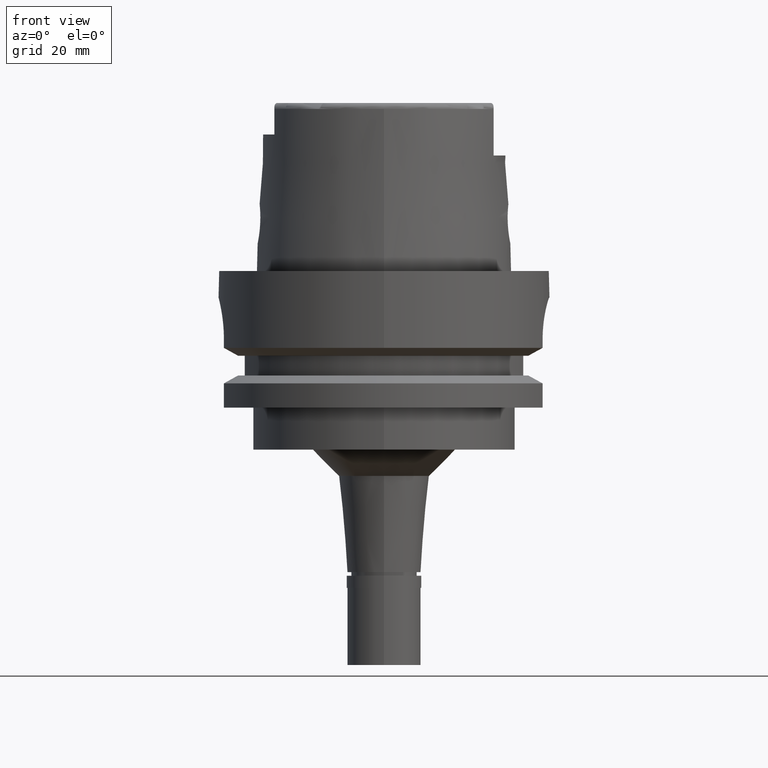
[diagram: clean part render]
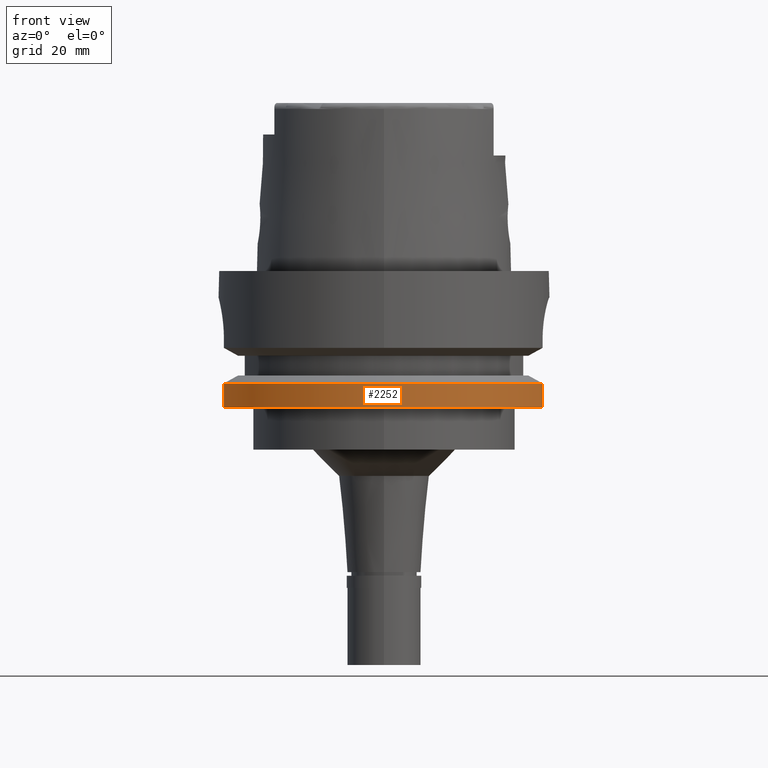
[diagram: same view with one face highlighted and labeled with its STEP entity id]
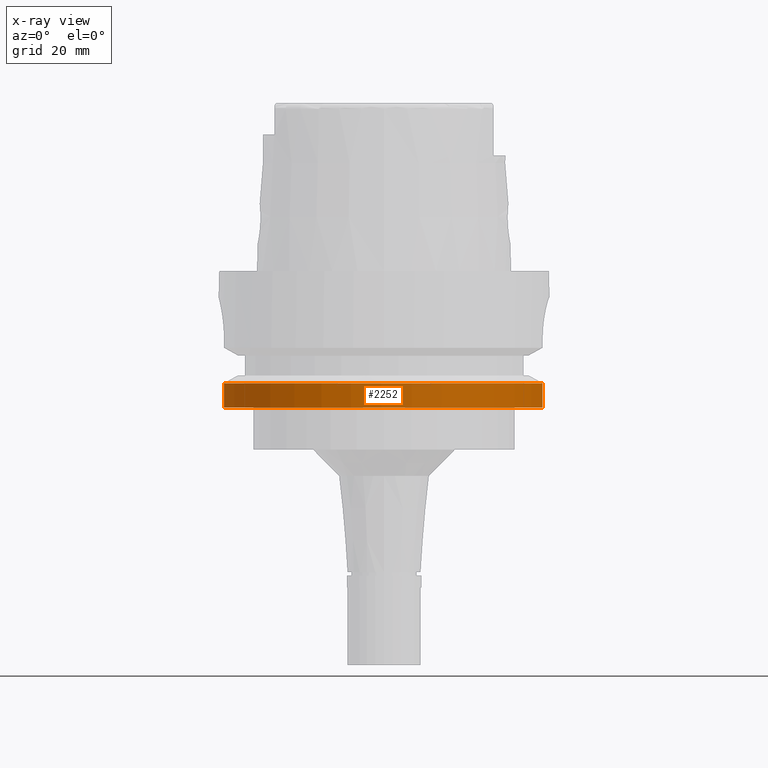
[diagram: x-ray of the same camera — body ghosted, the highlighted face saturated]
A machine part, front view. The second image highlights one B-rep face of the part: STEP entity #2252.
The next image is the same camera in x-ray: the body ghosted, the highlighted face saturated — about 0% of this face is hidden behind the body in this view.
In plain terms, the highlighted cylindrical surface (partial cylindrical patch) has radius 31.5 mm, axis along (0, 0, -1).
Its self-contained STEP definition (entity closure, byte-faithful):
#515 = VERTEX_POINT ( 'NONE', #1064 ) ;
#566 = DIRECTION ( 'NONE',  ( 4.481168997119943550E-08, 1.503032495320979407E-07, -0.9999999999999876765 ) ) ;
#749 = ORIENTED_EDGE ( 'NONE', *, *, #3922, .F. ) ;
#802 = ORIENTED_EDGE ( 'NONE', *, *, #5507, .T. ) ;
#858 = CARTESIAN_POINT ( 'NONE',  ( 0.0000000000000000000, 0.0000000000000000000, -26.00000000000000000 ) ) ;
#906 = AXIS2_PLACEMENT_3D ( 'NONE', #4703, #4252, #5528 ) ;
#1064 = CARTESIAN_POINT ( 'NONE',  ( 30.18691769625000276, -9.000000000000000000, -26.00000000000000000 ) ) ;
#1217 = VERTEX_POINT ( 'NONE', #5449 ) ;
#1330 = CARTESIAN_POINT ( 'NONE',  ( 30.18691748910999806, -9.000000694776000287, -21.37750467835999757 ) ) ;
#1343 = ORIENTED_EDGE ( 'NONE', *, *, #3048, .F. ) ;
#1344 = DIRECTION ( 'NONE',  ( -5.952348196577997099E-09, 2.266860439788999029E-08, 0.9999999999999996669 ) ) ;
#1635 = VECTOR ( 'NONE', #566, 1000.000000000000114 ) ;
#1722 = DIRECTION ( 'NONE',  ( 0.0000000000000000000, -1.000000000000000000, 0.0000000000000000000 ) ) ;
#1940 = CARTESIAN_POINT ( 'NONE',  ( -30.46719550067999904, -7.999999895214999768, -21.37749812354000412 ) ) ;
#2092 = AXIS2_PLACEMENT_3D ( 'NONE', #858, #4794, #1722 ) ;
#2252 = ADVANCED_FACE ( 'NONE', ( #2917 ), #4596, .T. ) ;
#2353 = ORIENTED_EDGE ( 'NONE', *, *, #5226, .T. ) ;
#2626 = AXIS2_PLACEMENT_3D ( 'NONE', #3770, #3343, #3688 ) ;
#2649 = LINE ( 'NONE', #3072, #5506 ) ;
#2917 = FACE_OUTER_BOUND ( 'NONE', #4036, .T. ) ;
#3048 = EDGE_CURVE ( 'NONE', #5432, #4573, #2649, .T. ) ;
#3072 = CARTESIAN_POINT ( 'NONE',  ( -30.46719547316000032, -8.000000000000000000, -26.00000000000000000 ) ) ;
#3343 = DIRECTION ( 'NONE',  ( 0.0000000000000000000, 0.0000000000000000000, -1.000000000000000000 ) ) ;
#3634 = CARTESIAN_POINT ( 'NONE',  ( -30.46719547316000032, -8.000000000000000000, -26.00000000000000000 ) ) ;
#3688 = DIRECTION ( 'NONE',  ( 0.9583148474999051425, -0.2857142857143015191, 0.0000000000000000000 ) ) ;
#3719 = CIRCLE ( 'NONE', #2626, 31.49999999999999645 ) ;
#3770 = CARTESIAN_POINT ( 'NONE',  ( 0.0000000000000000000, 0.0000000000000000000, -21.37749907476000288 ) ) ;
#3922 = EDGE_CURVE ( 'NONE', #1217, #515, #5146, .T. ) ;
#4036 = EDGE_LOOP ( 'NONE', ( #1343, #2353, #749, #802 ) ) ;
#4252 = DIRECTION ( 'NONE',  ( 0.0000000000000000000, 0.0000000000000000000, -1.000000000000000000 ) ) ;
#4531 = CIRCLE ( 'NONE', #2092, 31.50000000000000000 ) ;
#4573 = VERTEX_POINT ( 'NONE', #1940 ) ;
#4596 = CYLINDRICAL_SURFACE ( 'NONE', #906, 31.50000000000000000 ) ;
#4703 = CARTESIAN_POINT ( 'NONE',  ( 0.0000000000000000000, 0.0000000000000000000, 37.15000000000000568 ) ) ;
#4794 = DIRECTION ( 'NONE',  ( 0.0000000000000000000, 0.0000000000000000000, 1.000000000000000000 ) ) ;
#5146 = LINE ( 'NONE', #1330, #1635 ) ;
#5226 = EDGE_CURVE ( 'NONE', #5432, #515, #4531, .T. ) ;
#5432 = VERTEX_POINT ( 'NONE', #3634 ) ;
#5449 = CARTESIAN_POINT ( 'NONE',  ( 30.18691769625000276, -9.000000000000000000, -21.37749907476000288 ) ) ;
#5506 = VECTOR ( 'NONE', #1344, 1000.000000000000114 ) ;
#5507 = EDGE_CURVE ( 'NONE', #1217, #4573, #3719, .T. ) ;
#5528 = DIRECTION ( 'NONE',  ( 0.0000000000000000000, -1.000000000000000000, 0.0000000000000000000 ) ) ;